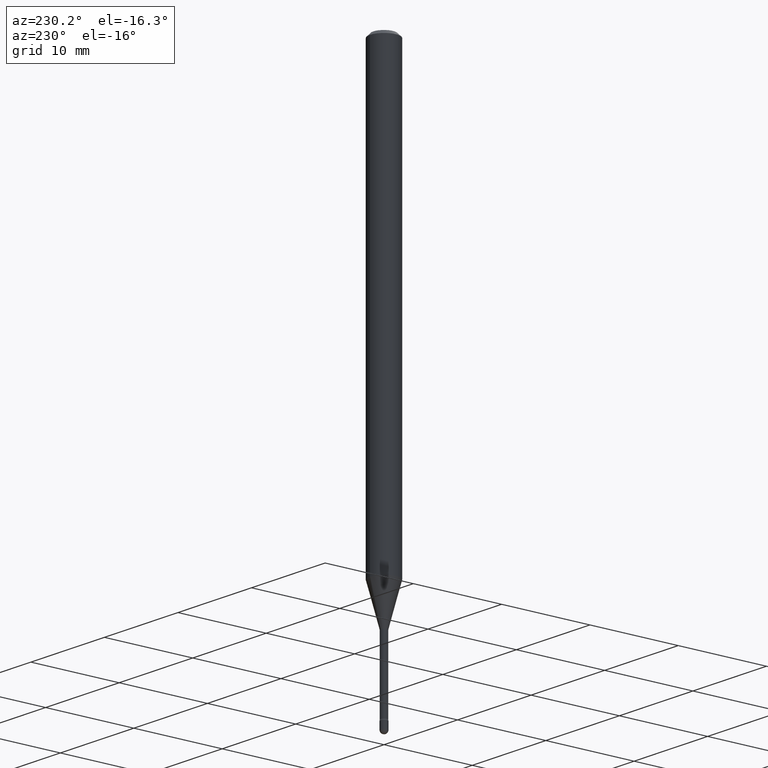
[diagram: clean part render]
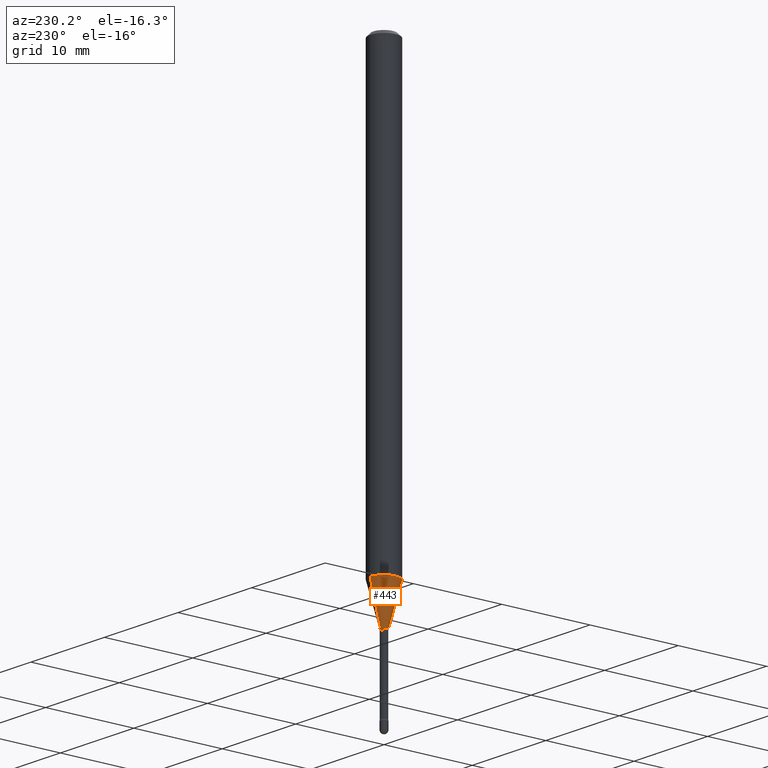
[diagram: same view with one face highlighted and labeled with its STEP entity id]
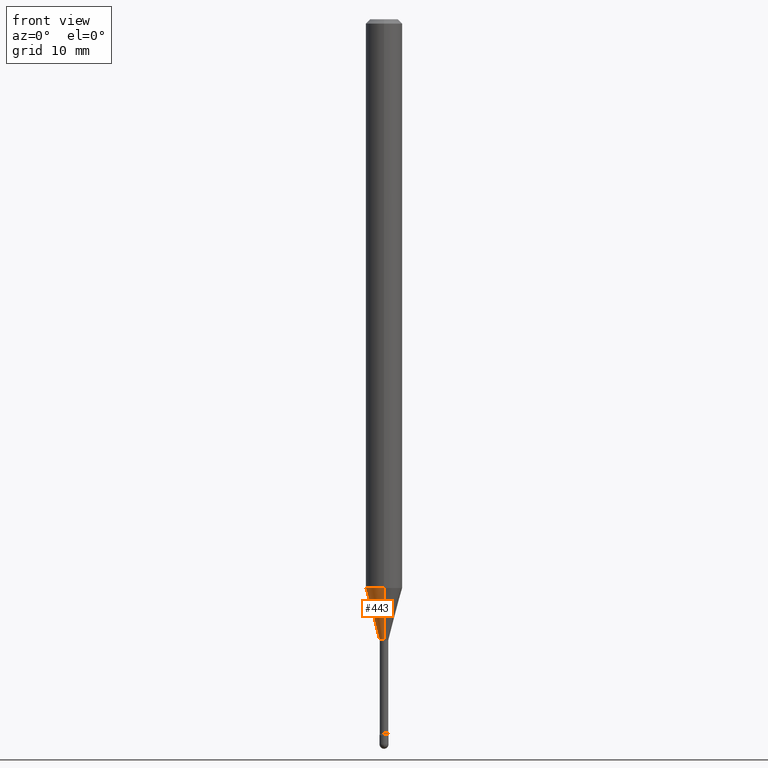
[diagram: same view with one face highlighted and labeled with its STEP entity id]
A machine part, auxiliary view. The second image highlights one B-rep face of the part: STEP entity #443.
A second angle (front view) of the same face is appended — the face is thin or edge-on in the first view.
In plain terms, the highlighted conical surface has half-angle 15 deg.
Its self-contained STEP definition (entity closure, byte-faithful):
#16 = LINE ( 'NONE', #516, #497 ) ;
#32 = LINE ( 'NONE', #221, #112 ) ;
#48 = AXIS2_PLACEMENT_3D ( 'NONE', #361, #505, #304 ) ;
#54 = CARTESIAN_POINT ( 'NONE',  ( 4.766342731079809553E-29, -6.805056349409992834E-15, -1.949048163777072462 ) ) ;
#61 = DIRECTION ( 'NONE',  ( -2.445472010216045436E-29, 3.491476750488522114E-15, 1.000000000000000000 ) ) ;
#65 = CARTESIAN_POINT ( 'NONE',  ( -1.051711872097297299E-16, -0.01506111260567140342, -2.126092501787273381 ) ) ;
#108 = VERTEX_POINT ( 'NONE', #157 ) ;
#111 = VERTEX_POINT ( 'NONE', #240 ) ;
#112 = VECTOR ( 'NONE', #389, 39.37007874015748854 ) ;
#123 = ORIENTED_EDGE ( 'NONE', *, *, #153, .F. ) ;
#153 = EDGE_CURVE ( 'NONE', #542, #111, #32, .T. ) ;
#157 = CARTESIAN_POINT ( 'NONE',  ( -4.364351673553439926E-16, -0.06250000000000681399, -1.949048163777072240 ) ) ;
#203 = EDGE_CURVE ( 'NONE', #542, #337, #463, .T. ) ;
#211 = ORIENTED_EDGE ( 'NONE', *, *, #203, .T. ) ;
#214 = AXIS2_PLACEMENT_3D ( 'NONE', #486, #315, #540 ) ;
#221 = CARTESIAN_POINT ( 'NONE',  ( 1.070156415442461480E-16, 0.01506111260565655766, -2.126092501787273381 ) ) ;
#240 = CARTESIAN_POINT ( 'NONE',  ( 4.440892098501100464E-16, 0.06249999999999317907, -1.949048163777072684 ) ) ;
#248 = CIRCLE ( 'NONE', #417, 0.06250000000000000000 ) ;
#282 = ORIENTED_EDGE ( 'NONE', *, *, #394, .F. ) ;
#304 = DIRECTION ( 'NONE',  ( -6.982962677686265922E-15, -1.000000000000000000, 0.000000000000000000 ) ) ;
#315 = DIRECTION ( 'NONE',  ( -2.445472010216045436E-29, 3.491476750488522114E-15, 1.000000000000000000 ) ) ;
#337 = VERTEX_POINT ( 'NONE', #65 ) ;
#361 = CARTESIAN_POINT ( 'NONE',  ( 5.199299704250984208E-29, -7.423202539378241076E-15, -2.126092501787273381 ) ) ;
#373 = FACE_OUTER_BOUND ( 'NONE', #380, .T. ) ;
#380 = EDGE_LOOP ( 'NONE', ( #123, #211, #528, #282 ) ) ;
#386 = CONICAL_SURFACE ( 'NONE', #214, 0.01506111260566398054, 0.2617993877991495189 ) ;
#389 = DIRECTION ( 'NONE',  ( 1.839019923739594793E-15, 0.2588190451025241812, 0.9659258262890673130 ) ) ;
#394 = EDGE_CURVE ( 'NONE', #111, #108, #248, .T. ) ;
#417 = AXIS2_PLACEMENT_3D ( 'NONE', #54, #61, #441 ) ;
#441 = DIRECTION ( 'NONE',  ( -6.982962677686265922E-15, -1.000000000000000000, 4.370956789862821150E-15 ) ) ;
#443 = ADVANCED_FACE ( 'NONE', ( #373 ), #386, .T. ) ;
#463 = CIRCLE ( 'NONE', #48, 0.01506111260566398054 ) ;
#472 = DIRECTION ( 'NONE',  ( -1.807323732225324617E-15, -0.2588190451025174088, 0.9659258262890690894 ) ) ;
#475 = CARTESIAN_POINT ( 'NONE',  ( 2.755524256971783745E-16, 0.01506111260565655939, -2.126092501787273381 ) ) ;
#486 = CARTESIAN_POINT ( 'NONE',  ( 5.199299704250984208E-29, -7.423202539378241076E-15, -2.126092501787273381 ) ) ;
#497 = VECTOR ( 'NONE', #472, 39.37007874015748854 ) ;
#505 = DIRECTION ( 'NONE',  ( -2.445472010216045436E-29, 3.491476750488522114E-15, 1.000000000000000000 ) ) ;
#507 = EDGE_CURVE ( 'NONE', #337, #108, #16, .T. ) ;
#516 = CARTESIAN_POINT ( 'NONE',  ( -1.051711872097297299E-16, -0.01506111260567140342, -2.126092501787273381 ) ) ;
#528 = ORIENTED_EDGE ( 'NONE', *, *, #507, .T. ) ;
#540 = DIRECTION ( 'NONE',  ( -6.982962677686265922E-15, -1.000000000000000000, 0.000000000000000000 ) ) ;
#542 = VERTEX_POINT ( 'NONE', #475 ) ;